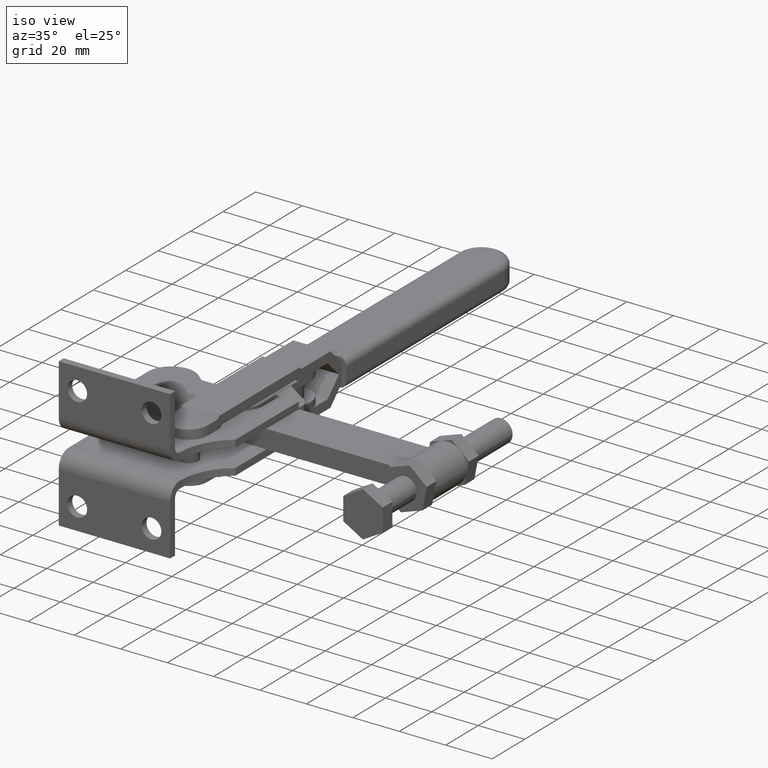
[diagram: clean part render]
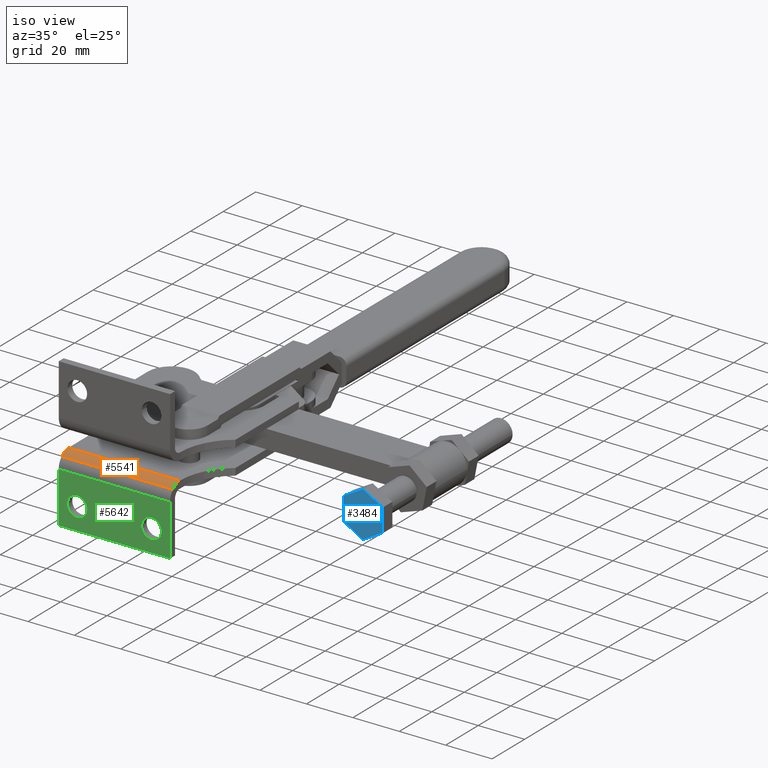
[diagram: same view with three faces highlighted in distinct colors, each labeled with its STEP entity id]
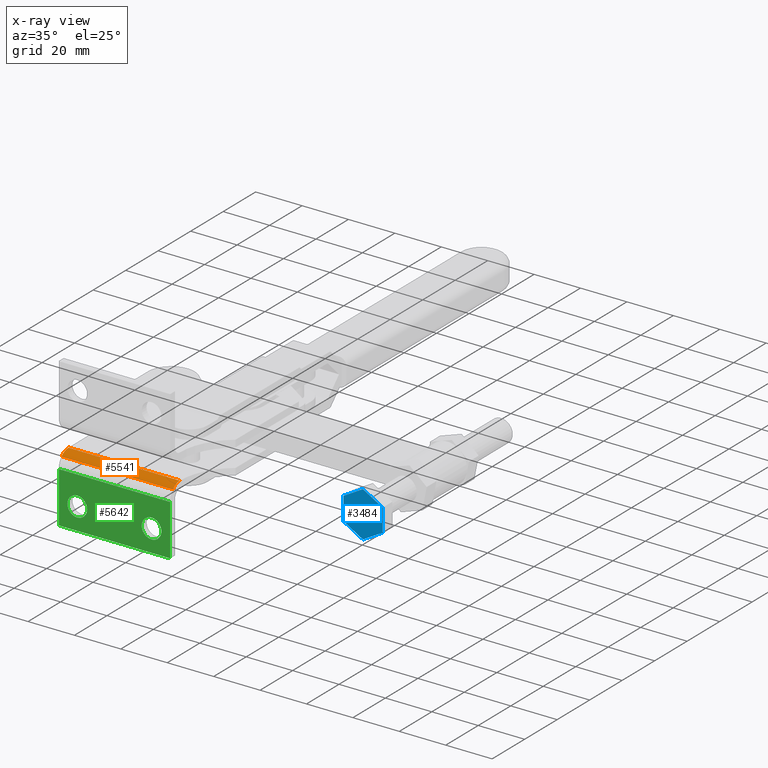
[diagram: x-ray of the same camera — body ghosted, the three highlighted faces saturated]
A machine part, iso view with three faces highlighted in distinct colors.
The next image is the same camera in x-ray (body ghosted, the three faces saturated) — at least one of them is partly hidden behind the body in this view.
Their STEP definitions:

[orange] entity #5541 — the highlighted face is a freeform B-spline surface patch.
#3871=CARTESIAN_POINT('',(-964.357969662263490,71.092249585627357,-4.000000000000492));
#3872=VERTEX_POINT('',#3871);
#4174=CARTESIAN_POINT('',(-1012.357969662263400,66.849608895347131,-5.757359312881233));
#4175=VERTEX_POINT('',#4174);
#4176=CARTESIAN_POINT('',(-964.357969662263490,66.849608895347103,-5.757359312881215));
#4177=VERTEX_POINT('',#4176);
#4178=CARTESIAN_POINT('',(-1012.357969662263400,66.849608895347131,-5.757359312881233));
#4179=DIRECTION('',(1.0,0.0,0.0));
#4180=VECTOR('',#4179,47.999999999999886);
#4181=LINE('',#4178,#4180);
#4182=EDGE_CURVE('',#4175,#4177,#4181,.T.);
#5381=CARTESIAN_POINT('',(-1012.357969662263300,71.092249582466422,-4.000000000000517));
#5382=VERTEX_POINT('',#5381);
#5383=CARTESIAN_POINT('',(-1012.357969662263300,71.092249582466422,-4.000000000000517));
#5384=DIRECTION('',(1.0,6.585280E-011,5.181041E-016));
#5385=VECTOR('',#5384,47.999999999999773);
#5386=LINE('',#5383,#5385);
#5387=EDGE_CURVE('',#5382,#3872,#5386,.T.);
#5497=CARTESIAN_POINT('',(-1012.357969662263400,75.334890269585713,-14.242640687119801));
#5498=CARTESIAN_POINT('',(-964.357969662263260,75.334890269585685,-14.242640687119776));
#5499=CARTESIAN_POINT('',(-1012.357969662263400,71.092249582466437,-18.485281374239090));
#5500=CARTESIAN_POINT('',(-964.357969662263140,71.092249582466408,-18.485281374239065));
#5501=CARTESIAN_POINT('',(-1012.357969662263400,66.849608895347131,-14.242640687119808));
#5502=CARTESIAN_POINT('',(-964.357969662263260,66.849608895347103,-14.242640687119783));
#5503=CARTESIAN_POINT('',(-1012.357969662263400,62.606968208227855,-10.000000000000522));
#5504=CARTESIAN_POINT('',(-964.357969662263140,62.606968208227826,-10.000000000000497));
#5505=CARTESIAN_POINT('',(-1012.357969662263400,66.849608895347131,-5.757359312881233));
#5506=CARTESIAN_POINT('',(-964.357969662263260,66.849608895347103,-5.757359312881208));
#5507=CARTESIAN_POINT('',(-1012.357969662263400,71.092249582466408,-1.514718625761944));
#5508=CARTESIAN_POINT('',(-964.357969662263140,71.092249582466380,-1.514718625761919));
#5509=CARTESIAN_POINT('',(-1012.357969662263400,75.334890269585713,-5.757359312881226));
#5510=CARTESIAN_POINT('',(-964.357969662263260,75.334890269585685,-5.757359312881201));
#5511=CARTESIAN_POINT('',(-1012.357969662263400,79.577530956704990,-10.000000000000510));
#5512=CARTESIAN_POINT('',(-964.357969662263140,79.577530956704962,-10.000000000000485));
#5513=CARTESIAN_POINT('',(-1012.357969662263400,75.334890269585713,-14.242640687119801));
#5514=CARTESIAN_POINT('',(-964.357969662263260,75.334890269585685,-14.242640687119776));
#5522=(BOUNDED_SURFACE()B_SPLINE_SURFACE(1,2,((#5497,#5499,#5501,#5503,#5505,#5507,#5509,#5511,#5513),(#5498,#5500,#5502,#5504,#5506,#5508,#5510,#5512,#5514)),.UNSPECIFIED.,.F.,.T.,.U.)B_SPLINE_SURFACE_WITH_KNOTS((2,2),(3,2,2,2,3),(-5.067864074633177,2.932135925366841),(0.0,9.424777960769381,18.849555921538762,28.274333882308142,37.699111843077524),.UNSPECIFIED.)GEOMETRIC_REPRESENTATION_ITEM()RATIONAL_B_SPLINE_SURFACE(((1.0,0.707106781186548,1.0,0.707106781186548,1.0,0.707106781186548,1.0,0.707106781186548,1.0),(1.0,0.707106781186548,1.0,0.707106781186548,1.0,0.707106781186548,1.0,0.707106781186548,1.0)))REPRESENTATION_ITEM('')SURFACE());
#5523=ORIENTED_EDGE('',*,*,#4182,.T.);
#5524=CARTESIAN_POINT('',(-964.357969662263490,71.092249582466394,-10.000000000000496));
#5525=DIRECTION('',(1.000000000000000,-5.619700E-016,5.619700E-016));
#5526=DIRECTION('',(-7.947456E-016,-0.707106781186547,0.707106781186547));
#5527=AXIS2_PLACEMENT_3D('',#5524,#5525,#5526);
#5528=CIRCLE('',#5527,6.0);
#5529=EDGE_CURVE('',#3872,#4177,#5528,.T.);
#5530=ORIENTED_EDGE('',*,*,#5529,.F.);
#5531=ORIENTED_EDGE('',*,*,#5387,.F.);
#5532=CARTESIAN_POINT('',(-1012.357969662263300,71.092249582466422,-10.000000000000517));
#5533=DIRECTION('',(-1.000000000000000,5.619700E-016,-5.619700E-016));
#5534=DIRECTION('',(-7.947456E-016,-0.707106781186547,0.707106781186547));
#5535=AXIS2_PLACEMENT_3D('',#5532,#5533,#5534);
#5536=CIRCLE('',#5535,6.0);
#5537=EDGE_CURVE('',#4175,#5382,#5536,.T.);
#5538=ORIENTED_EDGE('',*,*,#5537,.F.);
#5539=EDGE_LOOP('',(#5523,#5530,#5531,#5538));
#5540=FACE_OUTER_BOUND('',#5539,.T.);
#5541=ADVANCED_FACE('',(#5540),#5522,.T.);

[blue] entity #3484 — the highlighted planar face has unit normal (0, 1, 0).
#3282=CARTESIAN_POINT('',(-898.857969662267240,78.092249585600669,-4.907477288112162));
#3283=VERTEX_POINT('',#3282);
#3290=CARTESIAN_POINT('',(-898.857969662267240,78.092249585600669,4.907477288111476));
#3291=VERTEX_POINT('',#3290);
#3292=CARTESIAN_POINT('',(-898.857969662267240,78.092249585600669,4.907477288111476));
#3293=DIRECTION('',(0.0,0.0,-1.0));
#3294=VECTOR('',#3293,9.814954576223638);
#3295=LINE('',#3292,#3294);
#3296=EDGE_CURVE('',#3291,#3283,#3295,.T.);
#3320=CARTESIAN_POINT('',(-890.357969662267120,78.092249585600911,-9.814954576223984));
#3321=VERTEX_POINT('',#3320);
#3328=CARTESIAN_POINT('',(-898.857969662267240,78.092249585600669,-4.907477288112162));
#3329=DIRECTION('',(0.866025403784441,2.461392E-014,-0.499999999999995));
#3330=VECTOR('',#3329,9.814954576223739);
#3331=LINE('',#3328,#3330);
#3332=EDGE_CURVE('',#3283,#3321,#3331,.T.);
#3351=CARTESIAN_POINT('',(-881.857969662267120,78.092249585601138,-4.907477288112172));
#3352=VERTEX_POINT('',#3351);
#3359=CARTESIAN_POINT('',(-890.357969662267120,78.092249585600911,-9.814954576223984));
#3360=DIRECTION('',(0.866025403784439,2.316604E-014,0.499999999999999));
#3361=VECTOR('',#3360,9.814954576223634);
#3362=LINE('',#3359,#3361);
#3363=EDGE_CURVE('',#3321,#3352,#3362,.T.);
#3382=CARTESIAN_POINT('',(-881.857969662267120,78.092249585601138,4.907477288111465));
#3383=VERTEX_POINT('',#3382);
#3390=CARTESIAN_POINT('',(-881.857969662267120,78.092249585601138,-4.907477288112172));
#3391=DIRECTION('',(0.0,0.0,1.0));
#3392=VECTOR('',#3391,9.814954576223638);
#3393=LINE('',#3390,#3392);
#3394=EDGE_CURVE('',#3352,#3383,#3393,.T.);
#3413=CARTESIAN_POINT('',(-890.357969662267120,78.092249585600911,9.814954576223290));
#3414=VERTEX_POINT('',#3413);
#3421=CARTESIAN_POINT('',(-881.857969662267120,78.092249585601138,4.907477288111465));
#3422=DIRECTION('',(-0.866025403784438,-2.316604E-014,0.500000000000000));
#3423=VECTOR('',#3422,9.814954576223641);
#3424=LINE('',#3421,#3423);
#3425=EDGE_CURVE('',#3383,#3414,#3424,.T.);
#3443=CARTESIAN_POINT('',(-890.357969662267120,78.092249585600911,9.814954576223290));
#3444=DIRECTION('',(-0.866025403784442,-2.461392E-014,-0.499999999999995));
#3445=VECTOR('',#3444,9.814954576223734);
#3446=LINE('',#3443,#3445);
#3447=EDGE_CURVE('',#3414,#3291,#3446,.T.);
#3471=CARTESIAN_POINT('',(-890.357969662267120,78.092249585600911,-3.485862E-013));
#3472=DIRECTION('',(0.0,1.0,0.0));
#3473=DIRECTION('',(1.0,0.0,0.0));
#3474=AXIS2_PLACEMENT_3D('',#3471,#3472,#3473);
#3475=PLANE('',#3474);
#3476=ORIENTED_EDGE('',*,*,#3447,.T.);
#3477=ORIENTED_EDGE('',*,*,#3296,.T.);
#3478=ORIENTED_EDGE('',*,*,#3332,.T.);
#3479=ORIENTED_EDGE('',*,*,#3363,.T.);
#3480=ORIENTED_EDGE('',*,*,#3394,.T.);
#3481=ORIENTED_EDGE('',*,*,#3425,.T.);
#3482=EDGE_LOOP('',(#3476,#3477,#3478,#3479,#3480,#3481));
#3483=FACE_OUTER_BOUND('',#3482,.T.);
#3484=ADVANCED_FACE('',(#3483),#3475,.F.);

[green] entity #5642 — the highlighted face is a freeform B-spline surface patch.
#3989=CARTESIAN_POINT('',(-1000.107969660485000,65.092249582466422,-22.500000000000515));
#3990=VERTEX_POINT('',#3989);
#4006=CARTESIAN_POINT('',(-1008.607969660485100,65.092249582466408,-22.500000000000494));
#4007=VERTEX_POINT('',#4006);
#4014=CARTESIAN_POINT('',(-1004.357969660485000,65.092249582466408,-22.500000000000515));
#4015=DIRECTION('',(0.0,-1.0,0.0));
#4016=DIRECTION('',(1.0,0.0,0.0));
#4017=AXIS2_PLACEMENT_3D('',#4014,#4015,#4016);
#4018=CIRCLE('',#4017,4.249999999999976);
#4019=EDGE_CURVE('',#4007,#3990,#4018,.T.);
#4052=CARTESIAN_POINT('',(-968.107969660485200,65.092249582466394,-22.500000000000497));
#4053=VERTEX_POINT('',#4052);
#4069=CARTESIAN_POINT('',(-976.607969660485200,65.092249582466394,-22.500000000000476));
#4070=VERTEX_POINT('',#4069);
#4077=CARTESIAN_POINT('',(-972.357969660485080,65.092249582466394,-22.500000000000497));
#4078=DIRECTION('',(0.0,-1.0,0.0));
#4079=DIRECTION('',(1.0,0.0,0.0));
#4080=AXIS2_PLACEMENT_3D('',#4077,#4078,#4079);
#4081=CIRCLE('',#4080,4.249999999999910);
#4082=EDGE_CURVE('',#4070,#4053,#4081,.T.);
#4184=CARTESIAN_POINT('',(-1012.357969660485100,65.092249582466422,-10.000000000000517));
#4185=VERTEX_POINT('',#4184);
#4193=CARTESIAN_POINT('',(-964.357969660484970,65.092249582466380,-10.000000000000496));
#4194=VERTEX_POINT('',#4193);
#4195=CARTESIAN_POINT('',(-964.357969660484970,65.092249582466380,-10.000000000000496));
#4196=DIRECTION('',(-1.0,0.0,0.0));
#4197=VECTOR('',#4196,48.000000000000114);
#4198=LINE('',#4195,#4197);
#4199=EDGE_CURVE('',#4194,#4185,#4198,.T.);
#5582=CARTESIAN_POINT('',(-1012.357969660485100,65.092249582466422,-32.000000000000519));
#5583=VERTEX_POINT('',#5582);
#5590=CARTESIAN_POINT('',(-1012.357969660485100,65.092249582466422,-32.000000000000519));
#5591=DIRECTION('',(0.0,0.0,1.0));
#5592=VECTOR('',#5591,22.0);
#5593=LINE('',#5590,#5592);
#5594=EDGE_CURVE('',#5583,#4185,#5593,.T.);
#5599=CARTESIAN_POINT('',(-1012.357969660485100,65.092249582466408,-10.000000000000490));
#5600=CARTESIAN_POINT('',(-964.357969660484970,65.092249582466380,-10.000000000000465));
#5601=CARTESIAN_POINT('',(-1012.357969660485100,65.092249582466408,-32.000000000000540));
#5602=CARTESIAN_POINT('',(-964.357969660484860,65.092249582466380,-32.000000000000519));
#5603=B_SPLINE_SURFACE_WITH_KNOTS('',1,1,((#5599,#5601),(#5600,#5602)),.UNSPECIFIED.,.F.,.F.,.U.,(2,2),(2,2),(0.0,48.000000000000114),(0.0,22.000000000000050),.UNSPECIFIED.);
#5604=ORIENTED_EDGE('',*,*,#4199,.T.);
#5605=ORIENTED_EDGE('',*,*,#5594,.F.);
#5606=CARTESIAN_POINT('',(-964.357969660484970,65.092249582466380,-32.000000000000490));
#5607=VERTEX_POINT('',#5606);
#5608=CARTESIAN_POINT('',(-964.357969660484970,65.092249582466380,-32.000000000000490));
#5609=DIRECTION('',(-1.0,0.0,0.0));
#5610=VECTOR('',#5609,48.000000000000114);
#5611=LINE('',#5608,#5610);
#5612=EDGE_CURVE('',#5607,#5583,#5611,.T.);
#5613=ORIENTED_EDGE('',*,*,#5612,.F.);
#5614=CARTESIAN_POINT('',(-964.357969660484970,65.092249582466380,-10.000000000000496));
#5615=DIRECTION('',(0.0,0.0,-1.0));
#5616=VECTOR('',#5615,21.999999999999993);
#5617=LINE('',#5614,#5616);
#5618=EDGE_CURVE('',#4194,#5607,#5617,.T.);
#5619=ORIENTED_EDGE('',*,*,#5618,.F.);
#5620=EDGE_LOOP('',(#5604,#5605,#5613,#5619));
#5621=FACE_OUTER_BOUND('',#5620,.T.);
#5622=ORIENTED_EDGE('',*,*,#4019,.F.);
#5623=CARTESIAN_POINT('',(-1004.357969660485000,65.092249582466408,-22.500000000000515));
#5624=DIRECTION('',(0.0,-1.0,0.0));
#5625=DIRECTION('',(1.0,0.0,0.0));
#5626=AXIS2_PLACEMENT_3D('',#5623,#5624,#5625);
#5627=CIRCLE('',#5626,4.249999999999976);
#5628=EDGE_CURVE('',#3990,#4007,#5627,.T.);
#5629=ORIENTED_EDGE('',*,*,#5628,.F.);
#5630=EDGE_LOOP('',(#5622,#5629));
#5631=FACE_BOUND('',#5630,.T.);
#5632=ORIENTED_EDGE('',*,*,#4082,.F.);
#5633=CARTESIAN_POINT('',(-972.357969660485080,65.092249582466394,-22.500000000000497));
#5634=DIRECTION('',(0.0,-1.0,0.0));
#5635=DIRECTION('',(1.0,0.0,0.0));
#5636=AXIS2_PLACEMENT_3D('',#5633,#5634,#5635);
#5637=CIRCLE('',#5636,4.249999999999910);
#5638=EDGE_CURVE('',#4053,#4070,#5637,.T.);
#5639=ORIENTED_EDGE('',*,*,#5638,.F.);
#5640=EDGE_LOOP('',(#5632,#5639));
#5641=FACE_BOUND('',#5640,.T.);
#5642=ADVANCED_FACE('',(#5621,#5631,#5641),#5603,.F.);